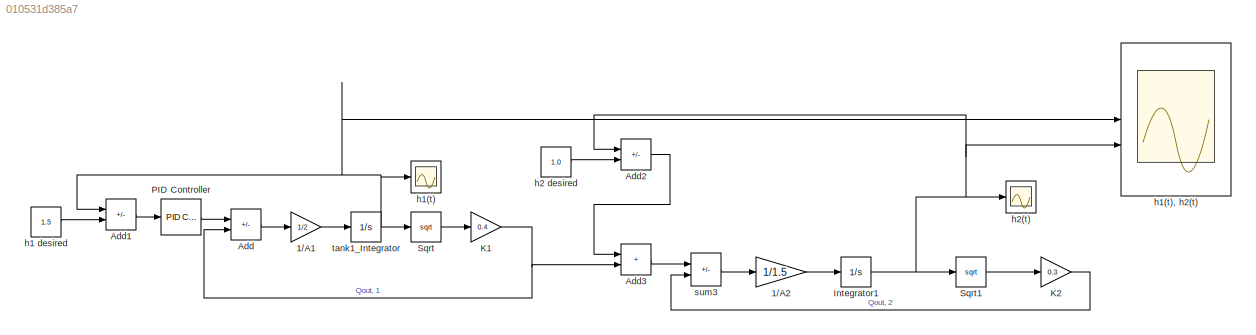
MODEL slx_010531d385a7
KIND model
CONFIG AbsTol = auto
CONFIG EnableMultiTasking = off
CONFIG FixedStep = auto
CONFIG MaxStep = auto
CONFIG MinStep = auto
CONFIG RelTol = 1e-3
CONFIG SampleTimeConstraint = Unconstrained
CONFIG SolverName = VariableStepAuto
CONFIG StartTime = 0.0
CONFIG StopTime = 10
BLOCK [Gain] 1//A1
  Gain = 1/2
BLOCK [Gain] 1//A2
  Gain = 1/1.5
BLOCK [Sum] Add
  IconShape = rectangular
  Inputs = +-
BLOCK [Sum] Add1
  IconShape = rectangular
  Inputs = -+
BLOCK [Sum] Add2
  IconShape = rectangular
  Inputs = -+
BLOCK [Sum] Add3
  IconShape = rectangular
BLOCK [Integrator] Integrator1
  InitialCondition = 0.5
BLOCK [Gain] K1
  Gain = 0.4
BLOCK [Gain] K2
  Gain = 0.3
BLOCK [Reference] PID Controller  REF=slpidlib/PID Controller
  LibrarySourceBlock = simulink/Continuous/PID Controller
  SourceBlock = slpidlib/PID Controller
  SourceType = PID 1dof
BLOCK [Sqrt] Sqrt
BLOCK [Sqrt] Sqrt1
BLOCK [Constant] h1 desired
  Value = 1.5
BLOCK [Scope] h1(t)
  Floating = off
  NumInputPorts = 1
  ScopeSpecificationString = Simulink.scopes.TimeScopeBlockCfg('CurrentConfiguration', extmgr.ConfigurationSet(extmgr.Configuration('Core','General UI',true),extmgr.Configuration('Core','Source UI',true),extmgr.Configuration('Sources','WiredSimulink',true),extmgr.Configuration('Visuals','Time Domain',true,'SerializedDisplays',{struct('MinYLimReal','0.375','MaxYLimReal','1.625','YLabelReal','','MinYLimMag','0.375','MaxYLimMag'...<+1436ch>
BLOCK [Scope] h1(t), h2(t)
  Floating = off
  NumInputPorts = 2
  ScopeSpecificationString = Simulink.scopes.TimeScopeBlockCfg('CurrentConfiguration', extmgr.ConfigurationSet(extmgr.Configuration('Core','General UI',true),extmgr.Configuration('Core','Source UI',true),extmgr.Configuration('Sources','WiredSimulink',true,'DataLoggingVariableName','ScopeData1'),extmgr.Configuration('Visuals','Time Domain',true,'SerializedDisplays',{struct('MinYLimReal','0.36784','MaxYLimReal','1.70115','YLabe...<+1824ch>
BLOCK [Constant] h2 desired
  Value = 1.0
BLOCK [Scope] h2(t)
  Floating = off
  NumInputPorts = 1
  ScopeSpecificationString = Simulink.scopes.TimeScopeBlockCfg('CurrentConfiguration', extmgr.ConfigurationSet(extmgr.Configuration('Core','General UI',true),extmgr.Configuration('Core','Source UI',true),extmgr.Configuration('Sources','WiredSimulink',true,'DataLoggingVariableName','ScopeData1'),extmgr.Configuration('Visuals','Time Domain',true,'SerializedDisplays',{struct('MinYLimReal','0.41676','MaxYLimReal','1.2492','YLabel...<+1453ch>
BLOCK [Sum] sum3
  IconShape = rectangular
  Inputs = +-
BLOCK [Integrator] tank1_Integrator
  InitialCondition = 0.5
LINE 1//A1:1 -> tank1_Integrator:1
LINE 1//A2:1 -> Integrator1:1
LINE Add1:1 -> PID Controller:1
LINE Add2:1 -> Add3:1
LINE Add3:1 -> sum3:1
LINE Add:1 -> 1//A1:1
NET Integrator1:1 -> Add2:1, Sqrt1:1, h1(t), h2(t):2, h2(t):1
NET K1:1 -> Add3:2, Add:2
LINE K2:1 -> sum3:2
LINE PID Controller:1 -> Add:1
LINE Sqrt1:1 -> K2:1
LINE Sqrt:1 -> K1:1
LINE h1 desired:1 -> Add1:2
LINE h2 desired:1 -> Add2:2
LINE sum3:1 -> 1//A2:1
NET tank1_Integrator:1 -> Add1:1, Sqrt:1, h1(t), h2(t):1, h1(t):1
note: NET lines group one-source signal fan-out (src -> all destinations, sorted); 1:1 wires keep LINE
